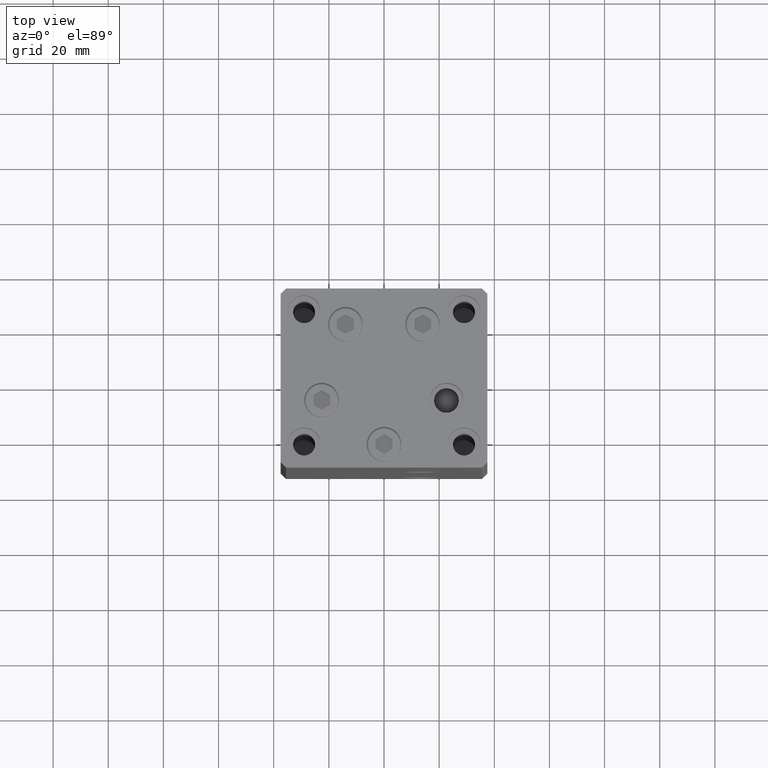
[diagram: clean part render]
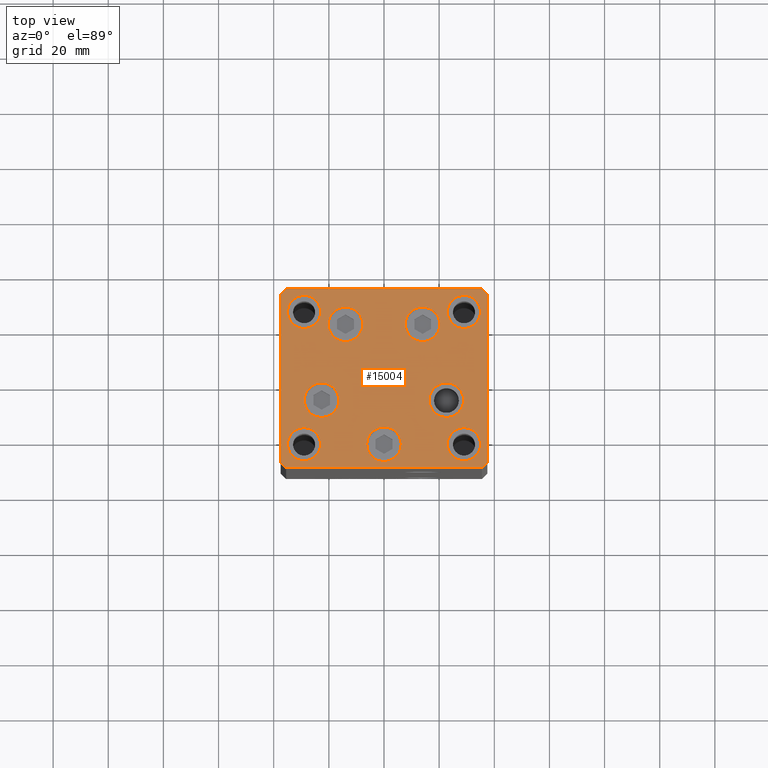
[diagram: same view with one face highlighted and labeled with its STEP entity id]
A machine part, top view. The second image highlights one B-rep face of the part: STEP entity #15004.
In plain terms, the highlighted planar face has unit normal (0, 0, 1).
Its self-contained STEP definition (entity closure, byte-faithful):
#128 = VERTEX_POINT ( 'NONE', #33953 ) ;
#153 = FACE_BOUND ( 'NONE', #4473, .T. ) ;
#645 = FACE_BOUND ( 'NONE', #40114, .T. ) ;
#869 = AXIS2_PLACEMENT_3D ( 'NONE', #26707, #30976, #18879 ) ;
#1165 = ORIENTED_EDGE ( 'NONE', *, *, #38925, .T. ) ;
#1464 = EDGE_CURVE ( 'NONE', #34736, #43613, #2981, .T. ) ;
#1552 = EDGE_CURVE ( 'NONE', #2149, #2341, #10154, .T. ) ;
#1572 = DIRECTION ( 'NONE',  ( 0.7071067811865487940, 0.7071067811865463515, 0.000000000000000000 ) ) ;
#1865 = AXIS2_PLACEMENT_3D ( 'NONE', #18154, #33511, #10132 ) ;
#2149 = VERTEX_POINT ( 'NONE', #5595 ) ;
#2199 = ORIENTED_EDGE ( 'NONE', *, *, #42551, .F. ) ;
#2340 = CARTESIAN_POINT ( 'NONE',  ( -35.49999999999998579, -32.50000000000001421, 0.000000000000000000 ) ) ;
#2341 = VERTEX_POINT ( 'NONE', #44982 ) ;
#2609 = DIRECTION ( 'NONE',  ( 1.000000000000000000, 0.000000000000000000, 0.000000000000000000 ) ) ;
#2807 = CARTESIAN_POINT ( 'NONE',  ( -35.50000000000002842, 32.49999999999999289, 0.000000000000000000 ) ) ;
#2912 = CARTESIAN_POINT ( 'NONE',  ( 23.00000000000001066, -23.99999999999999289, 0.000000000000000000 ) ) ;
#2981 = LINE ( 'NONE', #37183, #46255 ) ;
#3488 = VECTOR ( 'NONE', #34858, 1000.000000000000114 ) ;
#3509 = DIRECTION ( 'NONE',  ( 1.000000000000000000, 0.000000000000000000, 0.000000000000000000 ) ) ;
#4134 = LINE ( 'NONE', #27260, #17207 ) ;
#4185 = DIRECTION ( 'NONE',  ( -0.7071067811865482389, 0.7071067811865469066, 0.000000000000000000 ) ) ;
#4231 = CARTESIAN_POINT ( 'NONE',  ( 13.99106857963322348, 19.50000000000000000, 0.000000000000000000 ) ) ;
#4473 = EDGE_LOOP ( 'NONE', ( #23552, #41407 ) ) ;
#4514 = CARTESIAN_POINT ( 'NONE',  ( -35.49999999999998579, -32.50000000000001421, 0.000000000000000000 ) ) ;
#4637 = EDGE_CURVE ( 'NONE', #31719, #34736, #14857, .T. ) ;
#4654 = FACE_BOUND ( 'NONE', #28576, .T. ) ;
#4898 = FACE_BOUND ( 'NONE', #27641, .T. ) ;
#5294 = VERTEX_POINT ( 'NONE', #38455 ) ;
#5595 = CARTESIAN_POINT ( 'NONE',  ( 35.00000000000001421, 24.00000000000000711, 0.000000000000000000 ) ) ;
#5617 = VERTEX_POINT ( 'NONE', #41904 ) ;
#5710 = CARTESIAN_POINT ( 'NONE',  ( 29.00000000000001066, 24.00000000000000711, 0.000000000000000000 ) ) ;
#5966 = CARTESIAN_POINT ( 'NONE',  ( -37.49999999999998579, -30.50000000000001421, 0.000000000000000000 ) ) ;
#7032 = DIRECTION ( 'NONE',  ( 1.000000000000000000, 0.000000000000000000, 0.000000000000000000 ) ) ;
#7244 = CIRCLE ( 'NONE', #14449, 6.250000000000001776 ) ;
#7287 = CARTESIAN_POINT ( 'NONE',  ( 29.00000000000001066, 24.00000000000000711, 0.000000000000000000 ) ) ;
#7295 = ORIENTED_EDGE ( 'NONE', *, *, #33344, .T. ) ;
#7451 = VERTEX_POINT ( 'NONE', #4514 ) ;
#7918 = CIRCLE ( 'NONE', #23146, 5.999999999999998224 ) ;
#7953 = CARTESIAN_POINT ( 'NONE',  ( 0.000000000000000000, 0.000000000000000000, 0.000000000000000000 ) ) ;
#8017 = CIRCLE ( 'NONE', #20826, 6.250000000000001776 ) ;
#8222 = EDGE_CURVE ( 'NONE', #48611, #22354, #13592, .T. ) ;
#8547 = ORIENTED_EDGE ( 'NONE', *, *, #36811, .T. ) ;
#8770 = AXIS2_PLACEMENT_3D ( 'NONE', #43916, #39419, #37070 ) ;
#9229 = DIRECTION ( 'NONE',  ( 0.000000000000000000, 0.000000000000000000, 1.000000000000000000 ) ) ;
#9361 = ORIENTED_EDGE ( 'NONE', *, *, #46149, .T. ) ;
#10132 = DIRECTION ( 'NONE',  ( 1.000000000000000000, 0.000000000000000000, 0.000000000000000000 ) ) ;
#10154 = CIRCLE ( 'NONE', #34245, 6.000000000000005329 ) ;
#10450 = ORIENTED_EDGE ( 'NONE', *, *, #17921, .T. ) ;
#10545 = CARTESIAN_POINT ( 'NONE',  ( 22.62741699796951877, -8.000000000000000000, 0.000000000000000000 ) ) ;
#10965 = CARTESIAN_POINT ( 'NONE',  ( 37.49999999999992184, 30.50000000000001066, 0.000000000000000000 ) ) ;
#11079 = CIRCLE ( 'NONE', #38479, 6.250000000000001776 ) ;
#11128 = AXIS2_PLACEMENT_3D ( 'NONE', #7287, #40721, #22610 ) ;
#11456 = CIRCLE ( 'NONE', #16244, 5.999999999999998224 ) ;
#11482 = LINE ( 'NONE', #12216, #3488 ) ;
#12163 = VERTEX_POINT ( 'NONE', #31629 ) ;
#12193 = FACE_OUTER_BOUND ( 'NONE', #24445, .T. ) ;
#12216 = CARTESIAN_POINT ( 'NONE',  ( -37.49999999999998579, -30.50000000000001421, 0.000000000000000000 ) ) ;
#12450 = ORIENTED_EDGE ( 'NONE', *, *, #45483, .T. ) ;
#12534 = CARTESIAN_POINT ( 'NONE',  ( -37.50000000000001421, 30.49999999999998579, 0.000000000000000000 ) ) ;
#12712 = CARTESIAN_POINT ( 'NONE',  ( -35.00000000000000711, -23.99999999999999289, 0.000000000000000000 ) ) ;
#13578 = CARTESIAN_POINT ( 'NONE',  ( -22.62741699796951877, -8.000000000000005329, 0.000000000000000000 ) ) ;
#13592 = CIRCLE ( 'NONE', #8770, 6.000000000000005329 ) ;
#13594 = VERTEX_POINT ( 'NONE', #22631 ) ;
#13881 = ORIENTED_EDGE ( 'NONE', *, *, #8222, .F. ) ;
#13890 = LINE ( 'NONE', #2340, #36397 ) ;
#14230 = AXIS2_PLACEMENT_3D ( 'NONE', #41078, #37565, #2609 ) ;
#14449 = AXIS2_PLACEMENT_3D ( 'NONE', #40808, #29009, #21435 ) ;
#14809 = CARTESIAN_POINT ( 'NONE',  ( 2.939152317953647500E-15, -24.00000000000000000, 0.000000000000000000 ) ) ;
#14811 = DIRECTION ( 'NONE',  ( 0.000000000000000000, 0.000000000000000000, 1.000000000000000000 ) ) ;
#14857 = LINE ( 'NONE', #2807, #42360 ) ;
#15004 = ADVANCED_FACE ( 'NONE', ( #35083, #31791, #15466, #645, #27045, #34598, #153, #4898, #4654, #12193 ), #28030, .T. ) ;
#15020 = CARTESIAN_POINT ( 'NONE',  ( -35.50000000000002842, 32.49999999999999289, 0.000000000000000000 ) ) ;
#15466 = FACE_BOUND ( 'NONE', #29072, .T. ) ;
#15586 = CARTESIAN_POINT ( 'NONE',  ( 20.24106857963322526, 19.50000000000000000, 0.000000000000000000 ) ) ;
#15732 = EDGE_LOOP ( 'NONE', ( #12450, #19435 ) ) ;
#16244 = AXIS2_PLACEMENT_3D ( 'NONE', #36169, #21296, #31894 ) ;
#16410 = CARTESIAN_POINT ( 'NONE',  ( 2.939152317953647500E-15, -24.00000000000000000, 0.000000000000000000 ) ) ;
#17118 = CARTESIAN_POINT ( 'NONE',  ( 35.50000000000000711, -32.50000000000000711, 0.000000000000000000 ) ) ;
#17207 = VECTOR ( 'NONE', #30781, 1000.000000000000000 ) ;
#17260 = EDGE_LOOP ( 'NONE', ( #13881, #30611 ) ) ;
#17554 = CIRCLE ( 'NONE', #45678, 6.250000000000000000 ) ;
#17619 = LINE ( 'NONE', #17118, #41397 ) ;
#17769 = CARTESIAN_POINT ( 'NONE',  ( -7.741068579633227031, 19.49999999999999645, 0.000000000000000000 ) ) ;
#17921 = EDGE_CURVE ( 'NONE', #48043, #37663, #36329, .T. ) ;
#18154 = CARTESIAN_POINT ( 'NONE',  ( 29.00000000000001066, -23.99999999999999289, 0.000000000000000000 ) ) ;
#18340 = EDGE_LOOP ( 'NONE', ( #31152, #1165 ) ) ;
#18576 = CARTESIAN_POINT ( 'NONE',  ( -29.00000000000001066, 24.00000000000000711, 0.000000000000000000 ) ) ;
#18879 = DIRECTION ( 'NONE',  ( 1.000000000000000000, 0.000000000000000000, 0.000000000000000000 ) ) ;
#19101 = CIRCLE ( 'NONE', #23931, 6.250000000000000000 ) ;
#19435 = ORIENTED_EDGE ( 'NONE', *, *, #43839, .T. ) ;
#19635 = EDGE_CURVE ( 'NONE', #30944, #29691, #11456, .T. ) ;
#20077 = ORIENTED_EDGE ( 'NONE', *, *, #40530, .T. ) ;
#20793 = AXIS2_PLACEMENT_3D ( 'NONE', #45712, #21589, #25370 ) ;
#20826 = AXIS2_PLACEMENT_3D ( 'NONE', #13578, #28942, #45244 ) ;
#20958 = EDGE_CURVE ( 'NONE', #7451, #27699, #13890, .T. ) ;
#21000 = EDGE_CURVE ( 'NONE', #22354, #48611, #49227, .T. ) ;
#21296 = DIRECTION ( 'NONE',  ( 0.000000000000000000, 0.000000000000000000, 1.000000000000000000 ) ) ;
#21435 = DIRECTION ( 'NONE',  ( 1.000000000000000000, 0.000000000000000000, 0.000000000000000000 ) ) ;
#21495 = ORIENTED_EDGE ( 'NONE', *, *, #20958, .T. ) ;
#21589 = DIRECTION ( 'NONE',  ( 0.000000000000000000, 0.000000000000000000, 1.000000000000000000 ) ) ;
#21684 = EDGE_CURVE ( 'NONE', #43613, #7451, #11482, .T. ) ;
#22096 = DIRECTION ( 'NONE',  ( 1.000000000000000000, 0.000000000000000000, 0.000000000000000000 ) ) ;
#22346 = EDGE_CURVE ( 'NONE', #128, #31719, #33844, .T. ) ;
#22354 = VERTEX_POINT ( 'NONE', #2912 ) ;
#22421 = CIRCLE ( 'NONE', #20793, 5.999999999999998224 ) ;
#22610 = DIRECTION ( 'NONE',  ( 1.000000000000000000, 0.000000000000000000, 0.000000000000000000 ) ) ;
#22631 = CARTESIAN_POINT ( 'NONE',  ( -28.87741699796952233, -8.000000000000005329, 0.000000000000000000 ) ) ;
#22827 = DIRECTION ( 'NONE',  ( 4.550094363217855288E-16, -1.000000000000000000, 0.000000000000000000 ) ) ;
#23146 = AXIS2_PLACEMENT_3D ( 'NONE', #18576, #14811, #3509 ) ;
#23382 = EDGE_CURVE ( 'NONE', #32097, #35059, #4134, .T. ) ;
#23552 = ORIENTED_EDGE ( 'NONE', *, *, #19635, .F. ) ;
#23931 = AXIS2_PLACEMENT_3D ( 'NONE', #14809, #32938, #7032 ) ;
#24445 = EDGE_LOOP ( 'NONE', ( #47513, #21495, #48932, #38962, #27498, #47077, #26332, #34880 ) ) ;
#24770 = VERTEX_POINT ( 'NONE', #47419 ) ;
#24939 = CARTESIAN_POINT ( 'NONE',  ( 37.49999999999992184, 30.50000000000001066, 0.000000000000000000 ) ) ;
#25370 = DIRECTION ( 'NONE',  ( 1.000000000000000000, 0.000000000000000000, 0.000000000000000000 ) ) ;
#25871 = EDGE_LOOP ( 'NONE', ( #10450, #9361 ) ) ;
#25882 = DIRECTION ( 'NONE',  ( 0.000000000000000000, -0.000000000000000000, -1.000000000000000000 ) ) ;
#26332 = ORIENTED_EDGE ( 'NONE', *, *, #4637, .T. ) ;
#26637 = DIRECTION ( 'NONE',  ( 0.000000000000000000, -0.000000000000000000, -1.000000000000000000 ) ) ;
#26707 = CARTESIAN_POINT ( 'NONE',  ( -13.99106857963322703, 19.49999999999999645, 0.000000000000000000 ) ) ;
#27045 = FACE_BOUND ( 'NONE', #15732, .T. ) ;
#27260 = CARTESIAN_POINT ( 'NONE',  ( 37.50000000000001421, -30.50000000000000711, 0.000000000000000000 ) ) ;
#27498 = ORIENTED_EDGE ( 'NONE', *, *, #47624, .T. ) ;
#27541 = DIRECTION ( 'NONE',  ( 1.000000000000000000, 0.000000000000000000, 0.000000000000000000 ) ) ;
#27641 = EDGE_LOOP ( 'NONE', ( #39896, #2199 ) ) ;
#27699 = VERTEX_POINT ( 'NONE', #43279 ) ;
#27820 = CARTESIAN_POINT ( 'NONE',  ( 7.741068579633223479, 19.50000000000000000, 0.000000000000000000 ) ) ;
#28030 = PLANE ( 'NONE',  #29761 ) ;
#28121 = CARTESIAN_POINT ( 'NONE',  ( 35.00000000000001421, -23.99999999999999289, 0.000000000000000000 ) ) ;
#28241 = DIRECTION ( 'NONE',  ( 1.000000000000000000, 0.000000000000000000, 0.000000000000000000 ) ) ;
#28576 = EDGE_LOOP ( 'NONE', ( #45945, #48510 ) ) ;
#28596 = DIRECTION ( 'NONE',  ( 1.000000000000000000, 0.000000000000000000, 0.000000000000000000 ) ) ;
#28756 = AXIS2_PLACEMENT_3D ( 'NONE', #47323, #48313, #28241 ) ;
#28942 = DIRECTION ( 'NONE',  ( 0.000000000000000000, -0.000000000000000000, -1.000000000000000000 ) ) ;
#28959 = AXIS2_PLACEMENT_3D ( 'NONE', #4231, #46194, #45952 ) ;
#29009 = DIRECTION ( 'NONE',  ( 0.000000000000000000, -0.000000000000000000, -1.000000000000000000 ) ) ;
#29065 = CARTESIAN_POINT ( 'NONE',  ( -35.00000000000000711, 24.00000000000000711, 0.000000000000000000 ) ) ;
#29072 = EDGE_LOOP ( 'NONE', ( #29570, #8547 ) ) ;
#29084 = DIRECTION ( 'NONE',  ( -1.000000000000000000, -1.954618001100629052E-16, 0.000000000000000000 ) ) ;
#29570 = ORIENTED_EDGE ( 'NONE', *, *, #39694, .T. ) ;
#29691 = VERTEX_POINT ( 'NONE', #12712 ) ;
#29761 = AXIS2_PLACEMENT_3D ( 'NONE', #7953, #31323, #27541 ) ;
#29874 = VERTEX_POINT ( 'NONE', #29065 ) ;
#30411 = CIRCLE ( 'NONE', #11128, 6.000000000000005329 ) ;
#30611 = ORIENTED_EDGE ( 'NONE', *, *, #21000, .F. ) ;
#30781 = DIRECTION ( 'NONE',  ( -1.478780668045802821E-15, 1.000000000000000000, 0.000000000000000000 ) ) ;
#30905 = DIRECTION ( 'NONE',  ( 1.000000000000000000, 0.000000000000000000, 0.000000000000000000 ) ) ;
#30944 = VERTEX_POINT ( 'NONE', #42364 ) ;
#30976 = DIRECTION ( 'NONE',  ( 0.000000000000000000, -0.000000000000000000, -1.000000000000000000 ) ) ;
#31152 = ORIENTED_EDGE ( 'NONE', *, *, #46374, .T. ) ;
#31323 = DIRECTION ( 'NONE',  ( -0.000000000000000000, 0.000000000000000000, 1.000000000000000000 ) ) ;
#31629 = CARTESIAN_POINT ( 'NONE',  ( -23.00000000000001421, 24.00000000000000711, 0.000000000000000000 ) ) ;
#31719 = VERTEX_POINT ( 'NONE', #15020 ) ;
#31791 = FACE_BOUND ( 'NONE', #18340, .T. ) ;
#31894 = DIRECTION ( 'NONE',  ( 1.000000000000000000, 0.000000000000000000, 0.000000000000000000 ) ) ;
#32097 = VERTEX_POINT ( 'NONE', #35263 ) ;
#32938 = DIRECTION ( 'NONE',  ( 0.000000000000000000, -0.000000000000000000, -1.000000000000000000 ) ) ;
#33018 = DIRECTION ( 'NONE',  ( 1.000000000000000000, 9.773090005503140331E-17, 0.000000000000000000 ) ) ;
#33344 = EDGE_CURVE ( 'NONE', #40453, #24770, #39083, .T. ) ;
#33511 = DIRECTION ( 'NONE',  ( 0.000000000000000000, 0.000000000000000000, 1.000000000000000000 ) ) ;
#33844 = LINE ( 'NONE', #49154, #39653 ) ;
#33953 = CARTESIAN_POINT ( 'NONE',  ( 35.49999999999992184, 32.50000000000000711, 0.000000000000000000 ) ) ;
#34154 = VECTOR ( 'NONE', #4185, 999.9999999999998863 ) ;
#34245 = AXIS2_PLACEMENT_3D ( 'NONE', #5710, #9229, #28596 ) ;
#34598 = FACE_BOUND ( 'NONE', #17260, .T. ) ;
#34736 = VERTEX_POINT ( 'NONE', #12534 ) ;
#34858 = DIRECTION ( 'NONE',  ( 0.7071067811865474617, -0.7071067811865474617, 0.000000000000000000 ) ) ;
#34880 = ORIENTED_EDGE ( 'NONE', *, *, #1464, .T. ) ;
#35059 = VERTEX_POINT ( 'NONE', #24939 ) ;
#35083 = FACE_BOUND ( 'NONE', #25871, .T. ) ;
#35263 = CARTESIAN_POINT ( 'NONE',  ( 37.50000000000001421, -30.50000000000000711, 0.000000000000000000 ) ) ;
#35674 = EDGE_CURVE ( 'NONE', #29691, #30944, #43954, .T. ) ;
#35791 = DIRECTION ( 'NONE',  ( 1.000000000000000000, 0.000000000000000000, 0.000000000000000000 ) ) ;
#35852 = AXIS2_PLACEMENT_3D ( 'NONE', #16410, #39323, #35791 ) ;
#36169 = CARTESIAN_POINT ( 'NONE',  ( -29.00000000000001066, -23.99999999999999289, 0.000000000000000000 ) ) ;
#36329 = CIRCLE ( 'NONE', #46723, 6.250000000000000000 ) ;
#36397 = VECTOR ( 'NONE', #33018, 1000.000000000000000 ) ;
#36811 = EDGE_CURVE ( 'NONE', #5617, #5294, #43193, .T. ) ;
#37070 = DIRECTION ( 'NONE',  ( 1.000000000000000000, 0.000000000000000000, 0.000000000000000000 ) ) ;
#37183 = CARTESIAN_POINT ( 'NONE',  ( -37.50000000000001421, 30.49999999999998579, 0.000000000000000000 ) ) ;
#37335 = EDGE_CURVE ( 'NONE', #12163, #29874, #7918, .T. ) ;
#37390 = EDGE_CURVE ( 'NONE', #2341, #2149, #30411, .T. ) ;
#37565 = DIRECTION ( 'NONE',  ( 0.000000000000000000, 0.000000000000000000, 1.000000000000000000 ) ) ;
#37626 = DIRECTION ( 'NONE',  ( 1.000000000000000000, 0.000000000000000000, 0.000000000000000000 ) ) ;
#37663 = VERTEX_POINT ( 'NONE', #17769 ) ;
#38455 = CARTESIAN_POINT ( 'NONE',  ( 16.37741699796951877, -8.000000000000000000, 0.000000000000000000 ) ) ;
#38479 = AXIS2_PLACEMENT_3D ( 'NONE', #10545, #25882, #22096 ) ;
#38925 = EDGE_CURVE ( 'NONE', #41450, #44246, #17554, .T. ) ;
#38935 = CARTESIAN_POINT ( 'NONE',  ( -13.99106857963322703, 19.49999999999999645, 0.000000000000000000 ) ) ;
#38962 = ORIENTED_EDGE ( 'NONE', *, *, #23382, .T. ) ;
#39083 = CIRCLE ( 'NONE', #35852, 6.250000000000000000 ) ;
#39323 = DIRECTION ( 'NONE',  ( 0.000000000000000000, -0.000000000000000000, -1.000000000000000000 ) ) ;
#39419 = DIRECTION ( 'NONE',  ( 0.000000000000000000, 0.000000000000000000, 1.000000000000000000 ) ) ;
#39653 = VECTOR ( 'NONE', #29084, 1000.000000000000000 ) ;
#39694 = EDGE_CURVE ( 'NONE', #5294, #5617, #11079, .T. ) ;
#39896 = ORIENTED_EDGE ( 'NONE', *, *, #37335, .F. ) ;
#40114 = EDGE_LOOP ( 'NONE', ( #7295, #20077 ) ) ;
#40453 = VERTEX_POINT ( 'NONE', #40469 ) ;
#40469 = CARTESIAN_POINT ( 'NONE',  ( -6.249999999999997335, -24.00000000000000000, 0.000000000000000000 ) ) ;
#40530 = EDGE_CURVE ( 'NONE', #24770, #40453, #19101, .T. ) ;
#40721 = DIRECTION ( 'NONE',  ( 0.000000000000000000, 0.000000000000000000, 1.000000000000000000 ) ) ;
#40808 = CARTESIAN_POINT ( 'NONE',  ( -22.62741699796951877, -8.000000000000005329, 0.000000000000000000 ) ) ;
#41078 = CARTESIAN_POINT ( 'NONE',  ( -29.00000000000001066, -23.99999999999999289, 0.000000000000000000 ) ) ;
#41397 = VECTOR ( 'NONE', #1572, 1000.000000000000000 ) ;
#41407 = ORIENTED_EDGE ( 'NONE', *, *, #35674, .F. ) ;
#41450 = VERTEX_POINT ( 'NONE', #15586 ) ;
#41803 = CIRCLE ( 'NONE', #869, 6.250000000000000000 ) ;
#41890 = LINE ( 'NONE', #10965, #34154 ) ;
#41904 = CARTESIAN_POINT ( 'NONE',  ( 28.87741699796952233, -8.000000000000000000, 0.000000000000000000 ) ) ;
#42360 = VECTOR ( 'NONE', #45529, 1000.000000000000000 ) ;
#42364 = CARTESIAN_POINT ( 'NONE',  ( -23.00000000000001421, -23.99999999999999289, 0.000000000000000000 ) ) ;
#42551 = EDGE_CURVE ( 'NONE', #29874, #12163, #22421, .T. ) ;
#42677 = CARTESIAN_POINT ( 'NONE',  ( -16.37741699796951877, -8.000000000000005329, 0.000000000000000000 ) ) ;
#43193 = CIRCLE ( 'NONE', #28756, 6.250000000000001776 ) ;
#43279 = CARTESIAN_POINT ( 'NONE',  ( 35.50000000000000711, -32.50000000000000711, 0.000000000000000000 ) ) ;
#43306 = CARTESIAN_POINT ( 'NONE',  ( -20.24106857963322881, 19.49999999999999645, 0.000000000000000000 ) ) ;
#43613 = VERTEX_POINT ( 'NONE', #5966 ) ;
#43839 = EDGE_CURVE ( 'NONE', #46311, #13594, #8017, .T. ) ;
#43916 = CARTESIAN_POINT ( 'NONE',  ( 29.00000000000001066, -23.99999999999999289, 0.000000000000000000 ) ) ;
#43954 = CIRCLE ( 'NONE', #14230, 5.999999999999998224 ) ;
#44246 = VERTEX_POINT ( 'NONE', #27820 ) ;
#44982 = CARTESIAN_POINT ( 'NONE',  ( 23.00000000000001066, 24.00000000000000711, 0.000000000000000000 ) ) ;
#44997 = CIRCLE ( 'NONE', #28959, 6.250000000000000000 ) ;
#45244 = DIRECTION ( 'NONE',  ( 1.000000000000000000, 0.000000000000000000, 0.000000000000000000 ) ) ;
#45483 = EDGE_CURVE ( 'NONE', #13594, #46311, #7244, .T. ) ;
#45529 = DIRECTION ( 'NONE',  ( -0.7071067811865426878, -0.7071067811865524577, 0.000000000000000000 ) ) ;
#45645 = DIRECTION ( 'NONE',  ( 0.000000000000000000, -0.000000000000000000, -1.000000000000000000 ) ) ;
#45678 = AXIS2_PLACEMENT_3D ( 'NONE', #49668, #45645, #37626 ) ;
#45712 = CARTESIAN_POINT ( 'NONE',  ( -29.00000000000001066, 24.00000000000000711, 0.000000000000000000 ) ) ;
#45945 = ORIENTED_EDGE ( 'NONE', *, *, #1552, .F. ) ;
#45952 = DIRECTION ( 'NONE',  ( 1.000000000000000000, 0.000000000000000000, 0.000000000000000000 ) ) ;
#46149 = EDGE_CURVE ( 'NONE', #37663, #48043, #41803, .T. ) ;
#46194 = DIRECTION ( 'NONE',  ( 0.000000000000000000, -0.000000000000000000, -1.000000000000000000 ) ) ;
#46255 = VECTOR ( 'NONE', #22827, 1000.000000000000000 ) ;
#46311 = VERTEX_POINT ( 'NONE', #42677 ) ;
#46374 = EDGE_CURVE ( 'NONE', #44246, #41450, #44997, .T. ) ;
#46723 = AXIS2_PLACEMENT_3D ( 'NONE', #38935, #26637, #30905 ) ;
#47077 = ORIENTED_EDGE ( 'NONE', *, *, #22346, .T. ) ;
#47159 = EDGE_CURVE ( 'NONE', #27699, #32097, #17619, .T. ) ;
#47323 = CARTESIAN_POINT ( 'NONE',  ( 22.62741699796951877, -8.000000000000000000, 0.000000000000000000 ) ) ;
#47419 = CARTESIAN_POINT ( 'NONE',  ( 6.250000000000002665, -24.00000000000000000, 0.000000000000000000 ) ) ;
#47513 = ORIENTED_EDGE ( 'NONE', *, *, #21684, .T. ) ;
#47624 = EDGE_CURVE ( 'NONE', #35059, #128, #41890, .T. ) ;
#48043 = VERTEX_POINT ( 'NONE', #43306 ) ;
#48313 = DIRECTION ( 'NONE',  ( 0.000000000000000000, -0.000000000000000000, -1.000000000000000000 ) ) ;
#48510 = ORIENTED_EDGE ( 'NONE', *, *, #37390, .F. ) ;
#48611 = VERTEX_POINT ( 'NONE', #28121 ) ;
#48932 = ORIENTED_EDGE ( 'NONE', *, *, #47159, .T. ) ;
#49154 = CARTESIAN_POINT ( 'NONE',  ( 35.49999999999992184, 32.50000000000000711, 0.000000000000000000 ) ) ;
#49227 = CIRCLE ( 'NONE', #1865, 6.000000000000005329 ) ;
#49668 = CARTESIAN_POINT ( 'NONE',  ( 13.99106857963322348, 19.50000000000000000, 0.000000000000000000 ) ) ;